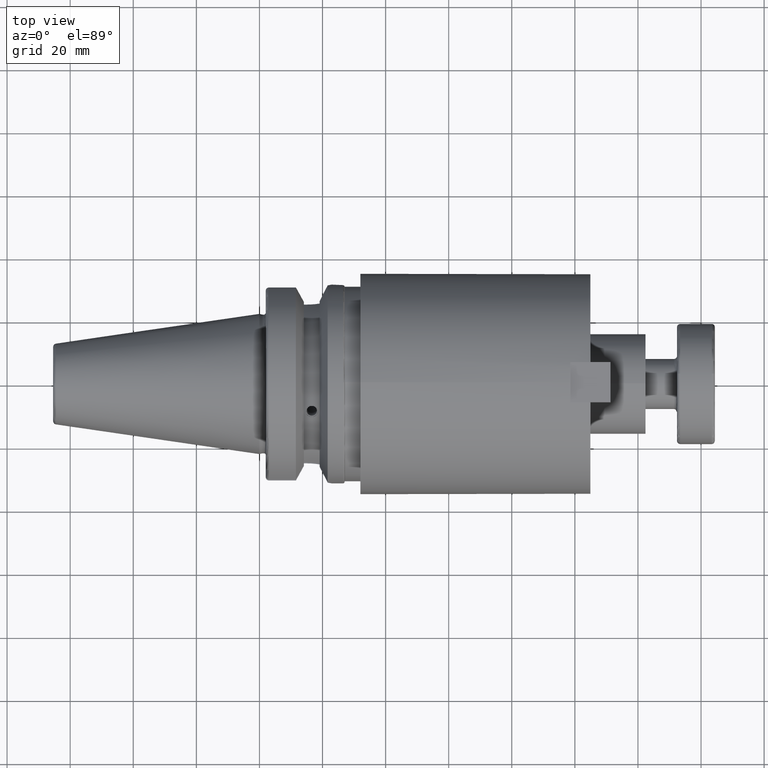
[diagram: clean part render]
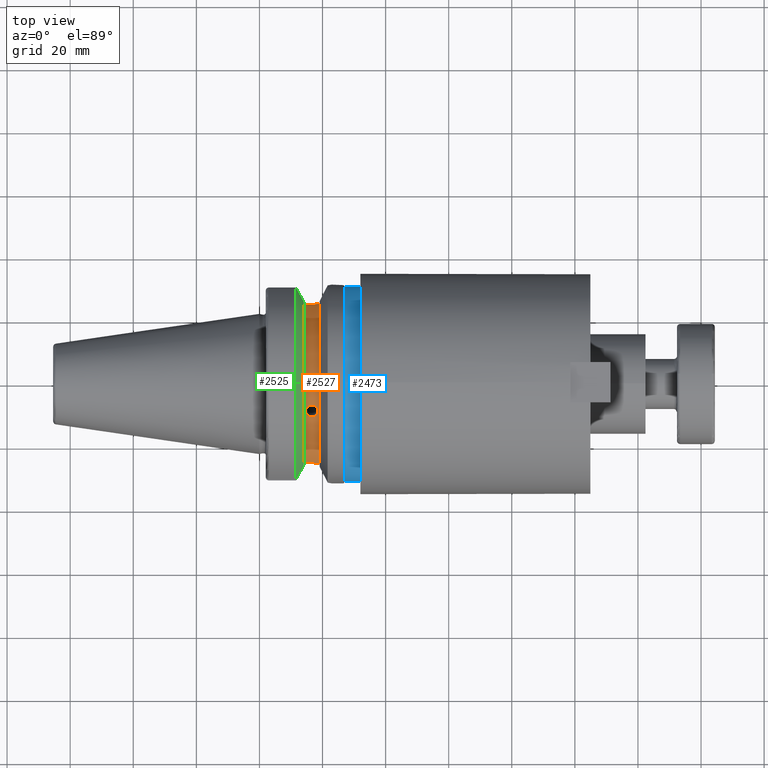
[diagram: same view with three faces highlighted in distinct colors, each labeled with its STEP entity id]
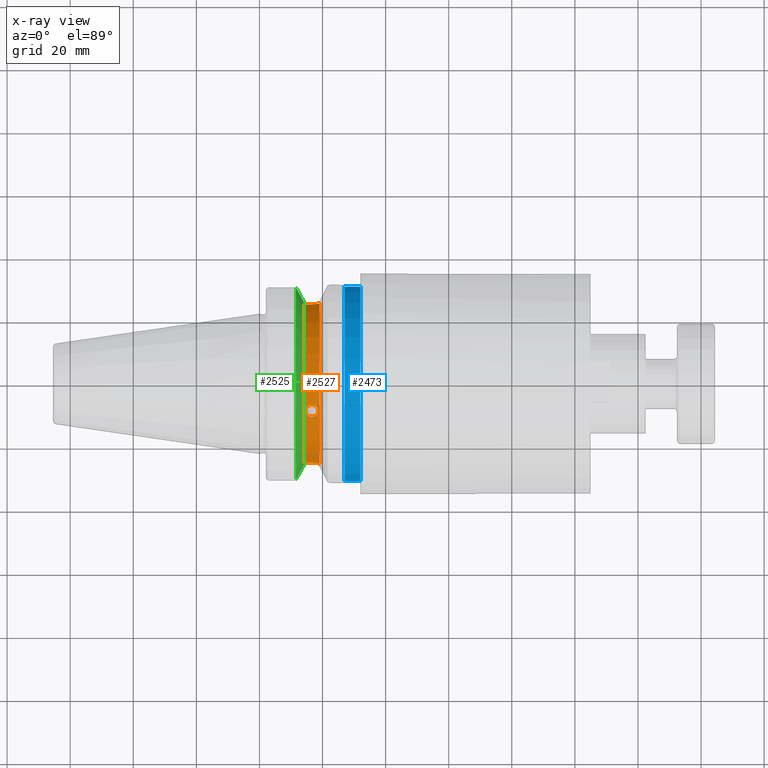
[diagram: x-ray of the same camera — body ghosted, the three highlighted faces saturated]
A machine part, top view with three faces highlighted in distinct colors.
The next image is the same camera in x-ray (body ghosted, the three faces saturated) — at least one of them is partly hidden behind the body in this view.
Their STEP definitions:

[orange] entity #2527 — the highlighted cylindrical surface (partial cylindrical patch) has radius 26.3 mm, axis along (1, 0, 0).
#518=B_SPLINE_CURVE_WITH_KNOTS('',3,(#4063,#4064,#4065,#4066,#4067,#4068,
#4069,#4070,#4071,#4072,#4073,#4074,#4075,#4076,#4077,#4078,#4079,#4080,
#4081,#4082,#4083,#4084,#4085,#4086,#4087,#4088),.UNSPECIFIED.,.F.,.F.,
(4,2,2,2,2,2,2,2,2,2,2,2,4),(0.,0.0753686022562803,0.150737204512561,0.226105721315764,
0.301474238118967,0.376842754922171,0.452211271725374,0.527579873981654,
0.602948476237934,0.678317078494215,0.753685680750495,0.829054197553698,
0.904422714356902),.UNSPECIFIED.);
#519=B_SPLINE_CURVE_WITH_KNOTS('',3,(#4089,#4090,#4091,#4092,#4093,#4094,
#4095,#4096,#4097,#4098),.UNSPECIFIED.,.F.,.F.,(4,2,2,2,4),(0.904422714356902,
0.979791231160105,1.05515974796331,1.13052835021959,1.20589695247587),
 .UNSPECIFIED.);
#527=B_SPLINE_CURVE_WITH_KNOTS('',3,(#4241,#4242,#4243,#4244,#4245,#4246),
 .UNSPECIFIED.,.F.,.F.,(4,2,4),(0.,0.305409847287967,0.418608358539114),
 .UNSPECIFIED.);
#534=B_SPLINE_CURVE_WITH_KNOTS('',3,(#4383,#4384,#4385,#4386,#4387,#4388),
 .UNSPECIFIED.,.F.,.F.,(4,2,4),(-0.418608358539114,-0.305409847287967,0.),
 .UNSPECIFIED.);
#558=FACE_BOUND('',#966,.T.);
#596=CYLINDRICAL_SURFACE('',#2891,26.3);
#674=CIRCLE('',#2890,26.3);
#675=CIRCLE('',#2892,26.3);
#824=FACE_OUTER_BOUND('',#965,.T.);
#965=EDGE_LOOP('',(#2158,#2159,#2160,#2161,#2162,#2163));
#966=EDGE_LOOP('',(#2164,#2165));
#1073=LINE('',#4254,#1208);
#1092=LINE('',#4399,#1227);
#1208=VECTOR('',#3303,10.);
#1227=VECTOR('',#3370,10.);
#1345=VERTEX_POINT('',#4060);
#1346=VERTEX_POINT('',#4062);
#1374=VERTEX_POINT('',#4238);
#1375=VERTEX_POINT('',#4240);
#1378=VERTEX_POINT('',#4253);
#1404=VERTEX_POINT('',#4380);
#1405=VERTEX_POINT('',#4382);
#1407=VERTEX_POINT('',#4398);
#1566=EDGE_CURVE('',#1346,#1345,#518,.T.);
#1567=EDGE_CURVE('',#1345,#1346,#519,.T.);
#1606=EDGE_CURVE('',#1375,#1374,#527,.T.);
#1610=EDGE_CURVE('',#1378,#1375,#1073,.T.);
#1649=EDGE_CURVE('',#1405,#1404,#534,.T.);
#1652=EDGE_CURVE('',#1404,#1407,#1092,.T.);
#1684=EDGE_CURVE('',#1407,#1378,#674,.T.);
#1685=EDGE_CURVE('',#1405,#1374,#675,.T.);
#2158=ORIENTED_EDGE('',*,*,#1606,.T.);
#2159=ORIENTED_EDGE('',*,*,#1685,.F.);
#2160=ORIENTED_EDGE('',*,*,#1649,.T.);
#2161=ORIENTED_EDGE('',*,*,#1652,.T.);
#2162=ORIENTED_EDGE('',*,*,#1684,.T.);
#2163=ORIENTED_EDGE('',*,*,#1610,.T.);
#2164=ORIENTED_EDGE('',*,*,#1566,.T.);
#2165=ORIENTED_EDGE('',*,*,#1567,.T.);
#2527=ADVANCED_FACE('',(#824,#558),#596,.T.);
#2890=AXIS2_PLACEMENT_3D('',#4474,#3449,#3450);
#2891=AXIS2_PLACEMENT_3D('',#4475,#3451,#3452);
#2892=AXIS2_PLACEMENT_3D('',#4476,#3453,#3454);
#3303=DIRECTION('',(1.,0.,0.));
#3370=DIRECTION('',(-1.,0.,0.));
#3449=DIRECTION('center_axis',(1.,0.,0.));
#3450=DIRECTION('ref_axis',(0.,0.,-1.));
#3451=DIRECTION('center_axis',(1.,0.,0.));
#3452=DIRECTION('ref_axis',(0.,1.,0.));
#3453=DIRECTION('center_axis',(1.,0.,0.));
#3454=DIRECTION('ref_axis',(0.,0.,-1.));
#4060=CARTESIAN_POINT('',(18.6,-8.99512976946508,24.7139159266694));
#4062=CARTESIAN_POINT('',(16.6,-10.8484681632397,23.9583125138473));
#4063=CARTESIAN_POINT('Ctrl Pts',(16.6,-10.8484681632397,23.9583125138473));
#4064=CARTESIAN_POINT('Ctrl Pts',(16.3487713258124,-10.8484681632397,23.9583125138473));
#4065=CARTESIAN_POINT('Ctrl Pts',(16.0808634635055,-10.8026312059314,23.9792332809551));
#4066=CARTESIAN_POINT('Ctrl Pts',(15.5881335734806,-10.6157220316234,24.0625625284371));
#4067=CARTESIAN_POINT('Ctrl Pts',(15.3633032901695,-10.4745836275816,24.1247736039656));
#4068=CARTESIAN_POINT('Ctrl Pts',(15.0082697863532,-10.1475002295709,24.2641678743161));
#4069=CARTESIAN_POINT('Ctrl Pts',(14.8543654731044,-9.93970858415699,24.3506250532793));
#4070=CARTESIAN_POINT('Ctrl Pts',(14.6502278994682,-9.4816008819375,24.5326311662299));
#4071=CARTESIAN_POINT('Ctrl Pts',(14.6,-9.23120723306358,24.6279907569385));
#4072=CARTESIAN_POINT('Ctrl Pts',(14.6,-8.75905230586659,24.7998410964003));
#4073=CARTESIAN_POINT('Ctrl Pts',(14.6502278994682,-8.50594367918219,24.8877413468803));
#4074=CARTESIAN_POINT('Ctrl Pts',(14.8543654731044,-8.03802154525512,25.0427825303295));
#4075=CARTESIAN_POINT('Ctrl Pts',(15.0082697863532,-7.82327030655317,25.1101183838853));
#4076=CARTESIAN_POINT('Ctrl Pts',(15.3633032901695,-7.48310897722805,25.2135813332562));
#4077=CARTESIAN_POINT('Ctrl Pts',(15.5881335734806,-7.33500217856616,25.2566469019161));
#4078=CARTESIAN_POINT('Ctrl Pts',(16.0808634635055,-7.13825843641358,25.3129558963152));
#4079=CARTESIAN_POINT('Ctrl Pts',(16.3487713258124,-7.08969768009609,25.32639308715));
#4080=CARTESIAN_POINT('Ctrl Pts',(16.8512286741876,-7.08969768009609,25.32639308715));
#4081=CARTESIAN_POINT('Ctrl Pts',(17.1191365364945,-7.13825843641358,25.3129558963152));
#4082=CARTESIAN_POINT('Ctrl Pts',(17.6118664265194,-7.33500217856616,25.2566469019161));
#4083=CARTESIAN_POINT('Ctrl Pts',(17.8366967098305,-7.48310897722804,25.2135813332562));
#4084=CARTESIAN_POINT('Ctrl Pts',(18.1917302136467,-7.82327030655317,25.1101183838853));
#4085=CARTESIAN_POINT('Ctrl Pts',(18.3456345268956,-8.03802154525511,25.0427825303295));
#4086=CARTESIAN_POINT('Ctrl Pts',(18.5497721005318,-8.50594367918219,24.8877413468803));
#4087=CARTESIAN_POINT('Ctrl Pts',(18.6,-8.75905230586659,24.7998410964003));
#4088=CARTESIAN_POINT('Ctrl Pts',(18.6,-8.99512976946508,24.7139159266694));
#4089=CARTESIAN_POINT('Ctrl Pts',(18.6,-8.99512976946509,24.7139159266694));
#4090=CARTESIAN_POINT('Ctrl Pts',(18.6,-9.23120723306358,24.6279907569385));
#4091=CARTESIAN_POINT('Ctrl Pts',(18.5497721005318,-9.48160088193749,24.5326311662299));
#4092=CARTESIAN_POINT('Ctrl Pts',(18.3456345268956,-9.93970858415699,24.3506250532793));
#4093=CARTESIAN_POINT('Ctrl Pts',(18.1917302136467,-10.1475002295709,24.2641678743161));
#4094=CARTESIAN_POINT('Ctrl Pts',(17.8366967098305,-10.4745836275816,24.1247736039656));
#4095=CARTESIAN_POINT('Ctrl Pts',(17.6118664265194,-10.6157220316234,24.0625625284371));
#4096=CARTESIAN_POINT('Ctrl Pts',(17.1191365364945,-10.8026312059314,23.9792332809551));
#4097=CARTESIAN_POINT('Ctrl Pts',(16.8512286741876,-10.8484681632397,23.9583125138473));
#4098=CARTESIAN_POINT('Ctrl Pts',(16.6,-10.8484681632397,23.9583125138473));
#4238=CARTESIAN_POINT('',(19.1,-25.3793222919762,6.8978257443922));
#4240=CARTESIAN_POINT('',(14.95,-25.0377215417058,8.05));
#4241=CARTESIAN_POINT('Ctrl Pts',(14.95,-25.0377215417058,8.05));
#4242=CARTESIAN_POINT('Ctrl Pts',(15.9680328242932,-25.0377215417058,8.05));
#4243=CARTESIAN_POINT('Ctrl Pts',(17.0490724969254,-25.1063150193149,7.84520188991776));
#4244=CARTESIAN_POINT('Ctrl Pts',(18.4068260684762,-25.2726009715968,7.28086186600679));
#4245=CARTESIAN_POINT('Ctrl Pts',(18.7623374744972,-25.3241080721198,7.10097664045187));
#4246=CARTESIAN_POINT('Ctrl Pts',(19.1,-25.3793222919762,6.89782574439221));
#4253=CARTESIAN_POINT('',(14.1,-25.0377215417058,8.05));
#4254=CARTESIAN_POINT('',(16.6,-25.0377215417058,8.05));
#4380=CARTESIAN_POINT('',(14.95,25.0377215417058,8.05));
#4382=CARTESIAN_POINT('',(19.1,25.3793222919762,6.8978257443922));
#4383=CARTESIAN_POINT('Ctrl Pts',(19.1,25.3793222919762,6.89782574439221));
#4384=CARTESIAN_POINT('Ctrl Pts',(18.7623374744972,25.3241080721198,7.10097664045187));
#4385=CARTESIAN_POINT('Ctrl Pts',(18.4068260684762,25.2726009715968,7.28086186600679));
#4386=CARTESIAN_POINT('Ctrl Pts',(17.0490724969254,25.1063150193149,7.84520188991776));
#4387=CARTESIAN_POINT('Ctrl Pts',(15.9680328242932,25.0377215417058,8.05));
#4388=CARTESIAN_POINT('Ctrl Pts',(14.95,25.0377215417058,8.05));
#4398=CARTESIAN_POINT('',(14.1,25.0377215417058,8.05));
#4399=CARTESIAN_POINT('',(16.6,25.0377215417058,8.05));
#4474=CARTESIAN_POINT('Origin',(14.1,0.,0.));
#4475=CARTESIAN_POINT('Origin',(16.6,0.,0.));
#4476=CARTESIAN_POINT('Origin',(19.1,0.,0.));

[blue] entity #2473 — the highlighted cylindrical surface (bore or boss wall) has radius 31 mm, axis along (1, 0, 0).
#573=CYLINDRICAL_SURFACE('',#2770,31.);
#626=CIRCLE('',#2771,31.);
#627=CIRCLE('',#2772,31.);
#770=FACE_OUTER_BOUND('',#899,.T.);
#899=EDGE_LOOP('',(#1874,#1875,#1876,#1877));
#1051=LINE('',#4018,#1186);
#1186=VECTOR('',#3161,31.);
#1331=VERTEX_POINT('',#4015);
#1332=VERTEX_POINT('',#4017);
#1543=EDGE_CURVE('',#1331,#1331,#626,.T.);
#1544=EDGE_CURVE('',#1331,#1332,#1051,.T.);
#1545=EDGE_CURVE('',#1332,#1332,#627,.T.);
#1874=ORIENTED_EDGE('',*,*,#1543,.F.);
#1875=ORIENTED_EDGE('',*,*,#1544,.T.);
#1876=ORIENTED_EDGE('',*,*,#1545,.T.);
#1877=ORIENTED_EDGE('',*,*,#1544,.F.);
#2473=ADVANCED_FACE('',(#770),#573,.T.);
#2770=AXIS2_PLACEMENT_3D('',#4014,#3157,#3158);
#2771=AXIS2_PLACEMENT_3D('',#4016,#3159,#3160);
#2772=AXIS2_PLACEMENT_3D('',#4019,#3162,#3163);
#3157=DIRECTION('center_axis',(1.,0.,0.));
#3158=DIRECTION('ref_axis',(0.,0.,-1.));
#3159=DIRECTION('center_axis',(1.,0.,0.));
#3160=DIRECTION('ref_axis',(0.,0.,-1.));
#3161=DIRECTION('',(-1.,0.,0.));
#3162=DIRECTION('center_axis',(1.,0.,0.));
#3163=DIRECTION('ref_axis',(0.,0.,-1.));
#4014=CARTESIAN_POINT('Origin',(29.5,0.,0.));
#4015=CARTESIAN_POINT('',(32.,-3.7964050773568E-15,31.));
#4016=CARTESIAN_POINT('Origin',(32.,0.,0.));
#4017=CARTESIAN_POINT('',(27.,-3.7964050773568E-15,31.));
#4018=CARTESIAN_POINT('',(29.5,-3.7964050773568E-15,31.));
#4019=CARTESIAN_POINT('Origin',(27.,0.,0.));

[green] entity #2525 — the highlighted conical surface has half-angle 60.125 deg.
#481=(
BOUNDED_CURVE()
B_SPLINE_CURVE(2,(#4258,#4259,#4260),.UNSPECIFIED.,.F.,.F.)
B_SPLINE_CURVE_WITH_KNOTS((3,3),(0.,0.523582790832811),.UNSPECIFIED.)
CURVE()
GEOMETRIC_REPRESENTATION_ITEM()
RATIONAL_B_SPLINE_CURVE((1.,1.00307360097463,1.))
REPRESENTATION_ITEM('')
);
#484=(
BOUNDED_CURVE()
B_SPLINE_CURVE(2,(#4418,#4419,#4420),.UNSPECIFIED.,.F.,.F.)
B_SPLINE_CURVE_WITH_KNOTS((3,3),(0.,0.523582790832811),.UNSPECIFIED.)
CURVE()
GEOMETRIC_REPRESENTATION_ITEM()
RATIONAL_B_SPLINE_CURVE((1.,1.00307360097463,1.))
REPRESENTATION_ITEM('')
);
#672=CIRCLE('',#2886,31.5000000000001);
#673=CIRCLE('',#2888,27.0940716549138);
#748=CONICAL_SURFACE('',#2887,29.2970358274569,1.0493792127616);
#822=FACE_OUTER_BOUND('',#963,.T.);
#963=EDGE_LOOP('',(#2150,#2151,#2152,#2153));
#1379=VERTEX_POINT('',#4255);
#1380=VERTEX_POINT('',#4257);
#1411=VERTEX_POINT('',#4415);
#1412=VERTEX_POINT('',#4417);
#1612=EDGE_CURVE('',#1380,#1379,#481,.T.);
#1657=EDGE_CURVE('',#1412,#1411,#484,.T.);
#1682=EDGE_CURVE('',#1411,#1380,#672,.T.);
#1683=EDGE_CURVE('',#1412,#1379,#673,.T.);
#2150=ORIENTED_EDGE('',*,*,#1612,.T.);
#2151=ORIENTED_EDGE('',*,*,#1683,.F.);
#2152=ORIENTED_EDGE('',*,*,#1657,.T.);
#2153=ORIENTED_EDGE('',*,*,#1682,.T.);
#2525=ADVANCED_FACE('',(#822),#748,.T.);
#2886=AXIS2_PLACEMENT_3D('',#4470,#3441,#3442);
#2887=AXIS2_PLACEMENT_3D('',#4471,#3443,#3444);
#2888=AXIS2_PLACEMENT_3D('',#4472,#3445,#3446);
#3441=DIRECTION('center_axis',(1.,0.,0.));
#3442=DIRECTION('ref_axis',(0.,0.,-1.));
#3443=DIRECTION('center_axis',(-1.,0.,0.));
#3444=DIRECTION('ref_axis',(0.,1.,0.));
#3445=DIRECTION('center_axis',(1.,0.,0.));
#3446=DIRECTION('ref_axis',(0.,0.,-1.));
#4255=CARTESIAN_POINT('',(14.1,-25.8705666509569,8.05));
#4257=CARTESIAN_POINT('',(11.5690363073382,-30.4540227227866,8.05));
#4258=CARTESIAN_POINT('Ctrl Pts',(11.5690363073382,-30.4540227227866,8.05));
#4259=CARTESIAN_POINT('Ctrl Pts',(12.9374976962853,-27.9899702651963,8.05));
#4260=CARTESIAN_POINT('Ctrl Pts',(14.1,-25.8705666509569,8.05));
#4415=CARTESIAN_POINT('',(11.5690363073382,30.4540227227866,8.05));
#4417=CARTESIAN_POINT('',(14.1,25.8705666509569,8.05));
#4418=CARTESIAN_POINT('Ctrl Pts',(14.1,25.8705666509569,8.05));
#4419=CARTESIAN_POINT('Ctrl Pts',(12.9374976962853,27.9899702651963,8.05));
#4420=CARTESIAN_POINT('Ctrl Pts',(11.5690363073382,30.4540227227866,8.05));
#4470=CARTESIAN_POINT('Origin',(11.5690363073382,0.,0.));
#4471=CARTESIAN_POINT('Origin',(12.8345181536691,0.,0.));
#4472=CARTESIAN_POINT('Origin',(14.1,0.,0.));